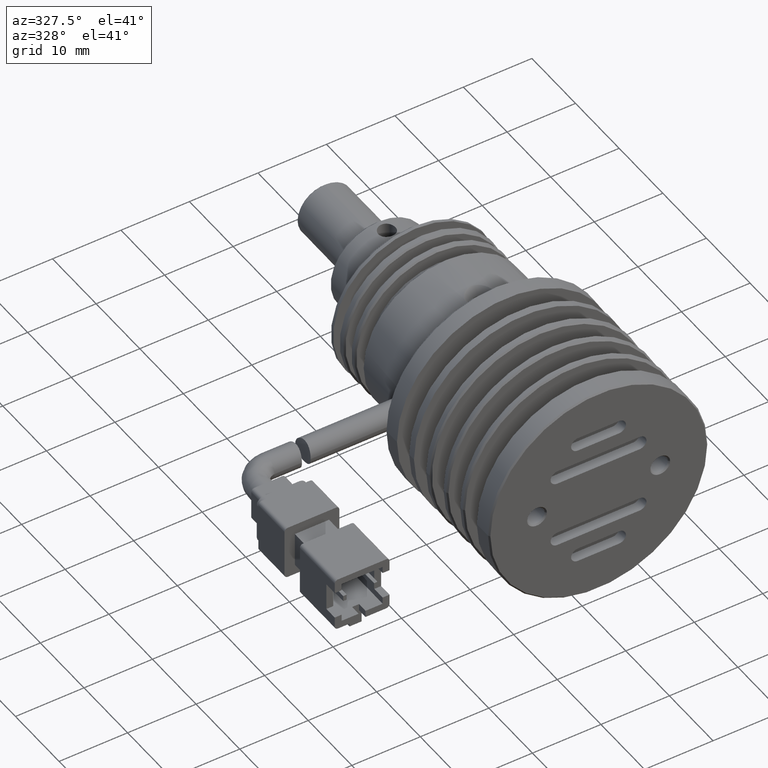
[diagram: clean part render]
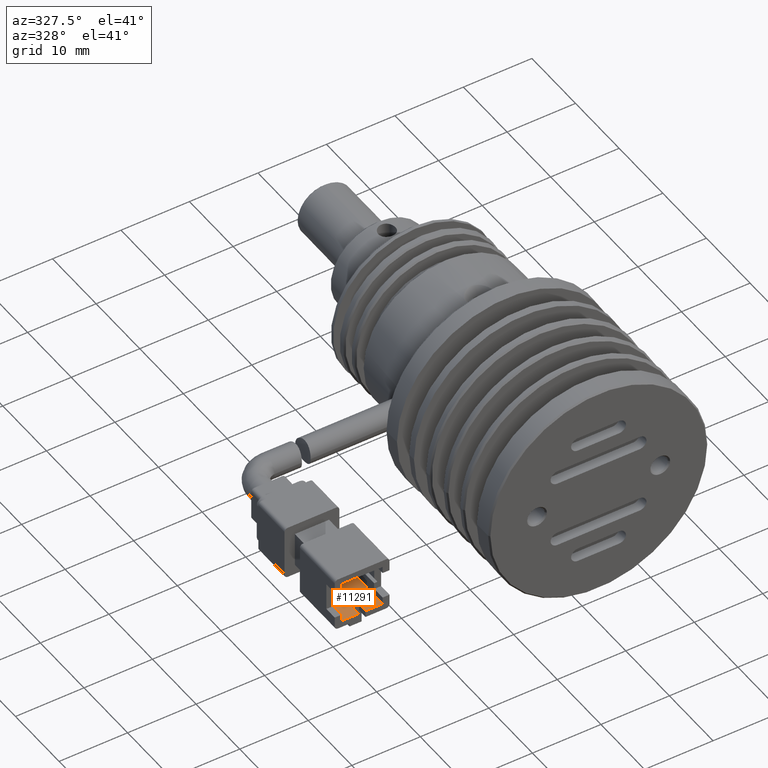
[diagram: same view with one face highlighted and labeled with its STEP entity id]
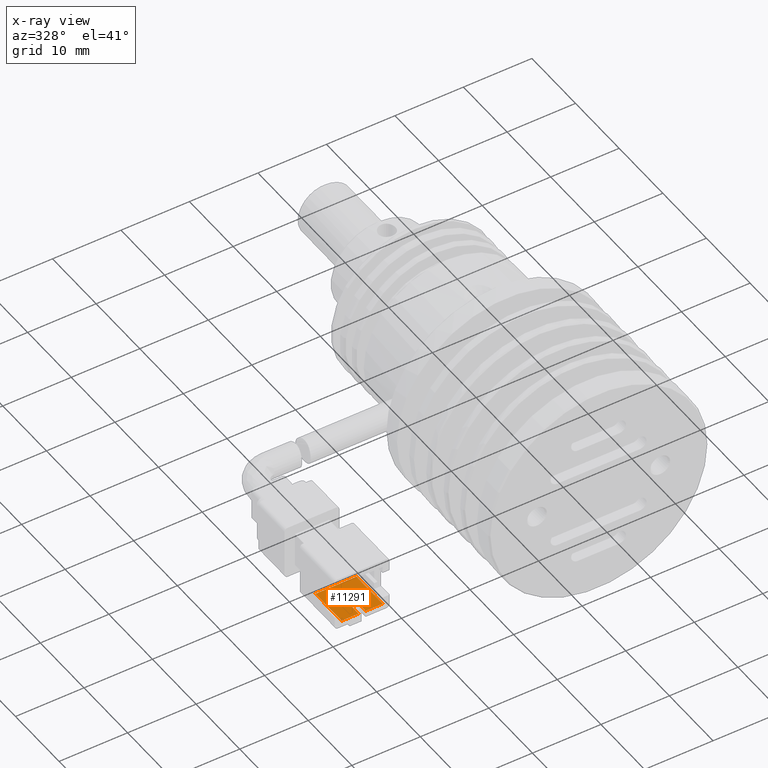
[diagram: x-ray of the same camera — body ghosted, the highlighted face saturated]
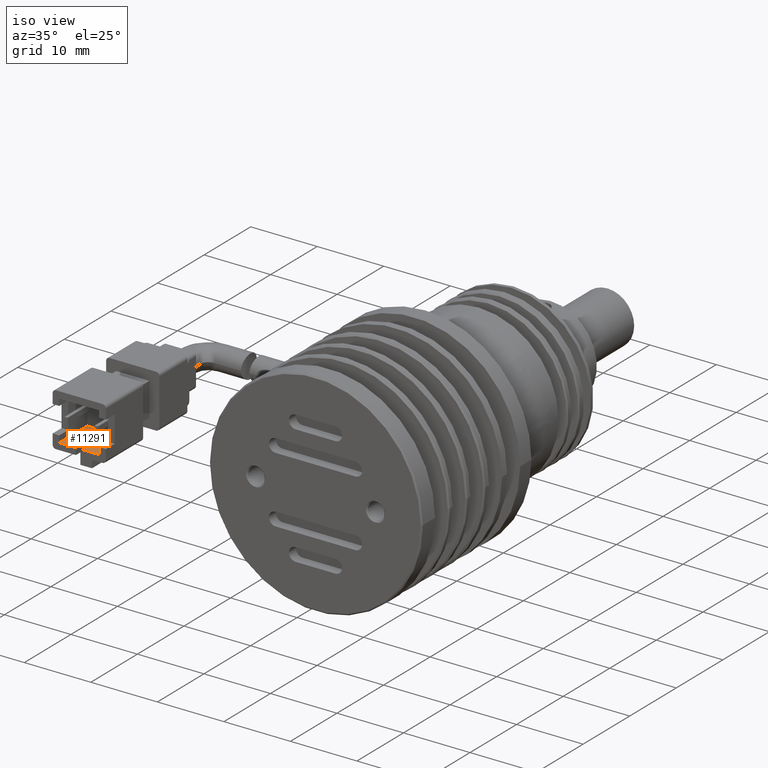
[diagram: same view with one face highlighted and labeled with its STEP entity id]
A machine part, auxiliary view. The second image highlights one B-rep face of the part: STEP entity #11291.
The next image is the same camera in x-ray: the body ghosted, the highlighted face saturated — about 0% of this face is hidden behind the body in this view.
A second angle (iso view) of the same face is appended — the face is thin or edge-on in the first view.
In plain terms, the highlighted planar face has unit normal (0, 0, -1).
Its self-contained STEP definition (entity closure, byte-faithful):
#33 = EDGE_CURVE ( 'NONE', #1582, #3674, #1315, .T. ) ;
#597 = ORIENTED_EDGE ( 'NONE', *, *, #4757, .T. ) ;
#1315 = LINE ( 'NONE', #4041, #16696 ) ;
#1571 = CARTESIAN_POINT ( 'NONE',  ( -35.42506621236418600, -34.46493551001254500, -12.07403592165941600 ) ) ;
#1582 = VERTEX_POINT ( 'NONE', #1571 ) ;
#2093 = LINE ( 'NONE', #6281, #6193 ) ;
#2371 = VECTOR ( 'NONE', #15241, 1000.000000000000000 ) ;
#2379 = FACE_OUTER_BOUND ( 'NONE', #17647, .T. ) ;
#2400 = AXIS2_PLACEMENT_3D ( 'NONE', #6342, #17084, #7894 ) ;
#2677 = EDGE_CURVE ( 'NONE', #4947, #3674, #2093, .T. ) ;
#2717 = VECTOR ( 'NONE', #7057, 1000.000000000000000 ) ;
#3442 = DIRECTION ( 'NONE',  ( 1.000000000000000000, -1.861400131669680400E-016, 3.590459175806322900E-017 ) ) ;
#3674 = VERTEX_POINT ( 'NONE', #8073 ) ;
#4041 = CARTESIAN_POINT ( 'NONE',  ( -29.42506621236418600, -34.46493551001254500, -12.07403592165941600 ) ) ;
#4624 = ORIENTED_EDGE ( 'NONE', *, *, #4739, .T. ) ;
#4739 = EDGE_CURVE ( 'NONE', #4823, #4884, #6832, .T. ) ;
#4757 = EDGE_CURVE ( 'NONE', #4884, #4947, #19308, .T. ) ;
#4823 = VERTEX_POINT ( 'NONE', #19811 ) ;
#4884 = VERTEX_POINT ( 'NONE', #7720 ) ;
#4947 = VERTEX_POINT ( 'NONE', #18733 ) ;
#5057 = EDGE_CURVE ( 'NONE', #4823, #14876, #16637, .T. ) ;
#5095 = VERTEX_POINT ( 'NONE', #9359 ) ;
#5495 = EDGE_CURVE ( 'NONE', #1582, #5095, #8643, .T. ) ;
#5556 = LINE ( 'NONE', #15386, #13253 ) ;
#5581 = EDGE_CURVE ( 'NONE', #5095, #14139, #14662, .T. ) ;
#5831 = ORIENTED_EDGE ( 'NONE', *, *, #33, .F. ) ;
#5945 = ORIENTED_EDGE ( 'NONE', *, *, #9670, .F. ) ;
#6193 = VECTOR ( 'NONE', #10860, 1000.000000000000000 ) ;
#6281 = CARTESIAN_POINT ( 'NONE',  ( -29.42506621236418600, -34.46493551001254500, -12.07403592165941600 ) ) ;
#6342 = CARTESIAN_POINT ( 'NONE',  ( -29.42506621236418600, -34.46493551001254500, -12.07403592165941600 ) ) ;
#6832 = LINE ( 'NONE', #12920, #2717 ) ;
#7057 = DIRECTION ( 'NONE',  ( 3.070042133013294300E-017, -1.000000000000000000, -1.137978600240785100E-015 ) ) ;
#7525 = VECTOR ( 'NONE', #12030, 1000.000000000000000 ) ;
#7720 = CARTESIAN_POINT ( 'NONE',  ( -31.92506621236418200, -40.46493551001254500, -12.07403592165942300 ) ) ;
#7894 = DIRECTION ( 'NONE',  ( 1.861400131669679900E-016, 1.000000000000000000, 1.137978600240785100E-015 ) ) ;
#8073 = CARTESIAN_POINT ( 'NONE',  ( -29.42506621236418600, -34.46493551001254500, -12.07403592165941600 ) ) ;
#8145 = VECTOR ( 'NONE', #17953, 1000.000000000000000 ) ;
#8465 = VECTOR ( 'NONE', #14179, 1000.000000000000000 ) ;
#8643 = LINE ( 'NONE', #8731, #8145 ) ;
#8731 = CARTESIAN_POINT ( 'NONE',  ( -35.42506621236418600, -34.46493551001254500, -12.07403592165941600 ) ) ;
#9359 = CARTESIAN_POINT ( 'NONE',  ( -35.42506621236418600, -40.46493551001254500, -12.07403592165942300 ) ) ;
#9670 = EDGE_CURVE ( 'NONE', #14876, #14139, #5556, .T. ) ;
#10388 = CARTESIAN_POINT ( 'NONE',  ( -32.92506621236418600, -38.96493551001254500, -12.07403592165942100 ) ) ;
#10600 = ORIENTED_EDGE ( 'NONE', *, *, #2677, .T. ) ;
#10746 = CARTESIAN_POINT ( 'NONE',  ( -32.92506621236418600, -40.46493551001254500, -12.07403592165942300 ) ) ;
#10860 = DIRECTION ( 'NONE',  ( 1.861400131669679900E-016, 1.000000000000000000, 1.137978600240785100E-015 ) ) ;
#11291 = ADVANCED_FACE ( 'NONE', ( #2379 ), #12318, .F. ) ;
#12030 = DIRECTION ( 'NONE',  ( 1.000000000000000000, -1.861400131669680400E-016, 3.590459175806322900E-017 ) ) ;
#12132 = ORIENTED_EDGE ( 'NONE', *, *, #5057, .F. ) ;
#12318 = PLANE ( 'NONE',  #2400 ) ;
#12920 = CARTESIAN_POINT ( 'NONE',  ( -31.92506621236418200, -40.46493551001253800, -12.07403592165942300 ) ) ;
#13253 = VECTOR ( 'NONE', #18598, 1000.000000000000000 ) ;
#13354 = ORIENTED_EDGE ( 'NONE', *, *, #5495, .T. ) ;
#13708 = CARTESIAN_POINT ( 'NONE',  ( -35.92506621236418600, -40.46493551001253800, -12.07403592165942300 ) ) ;
#14139 = VERTEX_POINT ( 'NONE', #10746 ) ;
#14179 = DIRECTION ( 'NONE',  ( -1.000000000000000000, 1.861400131669680400E-016, -3.590459175806322900E-017 ) ) ;
#14662 = LINE ( 'NONE', #13708, #2371 ) ;
#14876 = VERTEX_POINT ( 'NONE', #10388 ) ;
#15241 = DIRECTION ( 'NONE',  ( 1.000000000000000000, -1.861400131669680400E-016, 3.590459175806322900E-017 ) ) ;
#15386 = CARTESIAN_POINT ( 'NONE',  ( -32.92506621236418600, -34.46493551001254500, -12.07403592165941600 ) ) ;
#16637 = LINE ( 'NONE', #18940, #8465 ) ;
#16696 = VECTOR ( 'NONE', #3442, 1000.000000000000000 ) ;
#17084 = DIRECTION ( 'NONE',  ( 3.590459175806343900E-017, 1.137978600240785100E-015, -1.000000000000000000 ) ) ;
#17564 = ORIENTED_EDGE ( 'NONE', *, *, #5581, .T. ) ;
#17647 = EDGE_LOOP ( 'NONE', ( #5945, #12132, #4624, #597, #10600, #5831, #13354, #17564 ) ) ;
#17953 = DIRECTION ( 'NONE',  ( -1.861400131669679900E-016, -1.000000000000000000, -1.137978600240785100E-015 ) ) ;
#18598 = DIRECTION ( 'NONE',  ( -1.861400131669679900E-016, -1.000000000000000000, -1.137978600240785100E-015 ) ) ;
#18733 = CARTESIAN_POINT ( 'NONE',  ( -29.42506621236418600, -40.46493551001254500, -12.07403592165942300 ) ) ;
#18940 = CARTESIAN_POINT ( 'NONE',  ( -29.42506621236418600, -38.96493551001254500, -12.07403592165942100 ) ) ;
#19308 = LINE ( 'NONE', #19748, #7525 ) ;
#19748 = CARTESIAN_POINT ( 'NONE',  ( -35.92506621236418600, -40.46493551001253800, -12.07403592165942300 ) ) ;
#19811 = CARTESIAN_POINT ( 'NONE',  ( -31.92506621236418200, -38.96493551001254500, -12.07403592165942100 ) ) ;